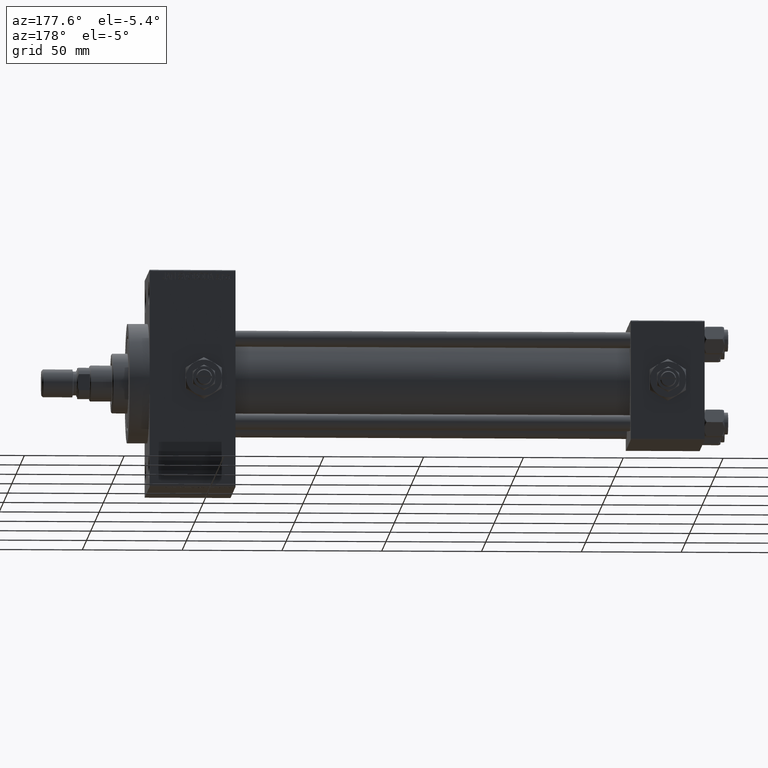
[diagram: clean part render]
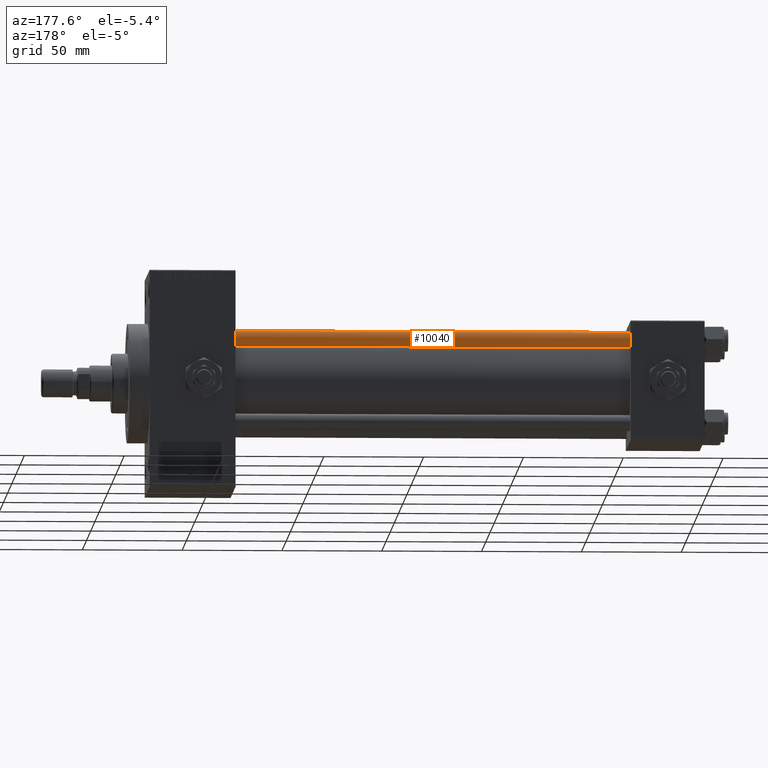
[diagram: same view with one face highlighted and labeled with its STEP entity id]
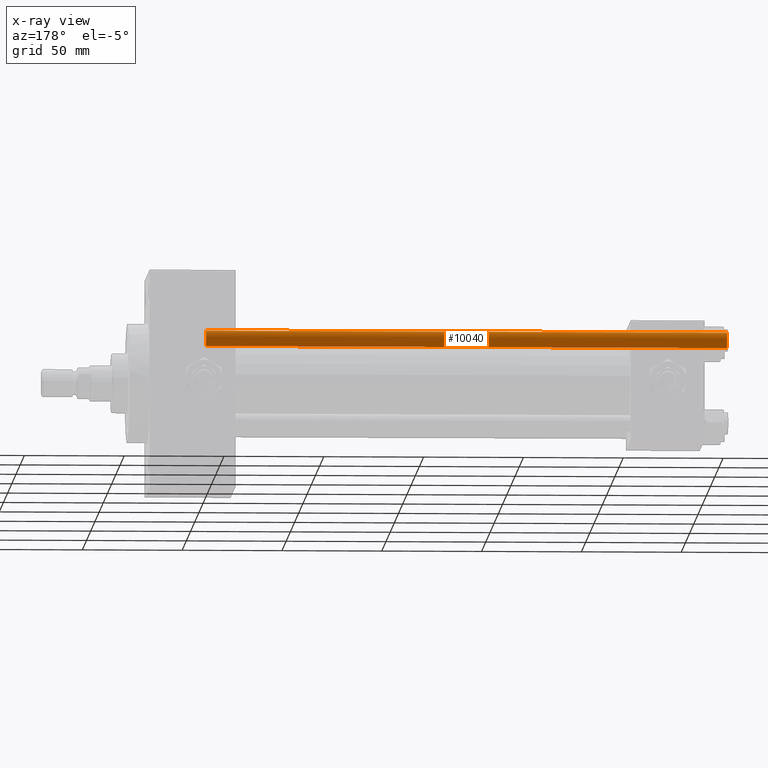
[diagram: x-ray of the same camera — body ghosted, the highlighted face saturated]
A machine part, auxiliary view. The second image highlights one B-rep face of the part: STEP entity #10040.
The next image is the same camera in x-ray: the body ghosted, the highlighted face saturated — about 0% of this face is hidden behind the body in this view.
In plain terms, the highlighted cylindrical surface (edge-blend (fillet) strip) has radius 4 mm, axis along (-1, -0, 0).
Its self-contained STEP definition (entity closure, byte-faithful):
#1569 = CYLINDRICAL_SURFACE ( 'NONE', #29147, 4.000000000000000000 ) ;
#6600 = ORIENTED_EDGE ( 'NONE', *, *, #23035, .T. ) ;
#8868 = DIRECTION ( 'NONE',  ( 1.000000000000000000, 0.000000000000000000, 0.000000000000000000 ) ) ;
#9395 = FACE_OUTER_BOUND ( 'NONE', #17322, .T. ) ;
#10040 = ADVANCED_FACE ( 'NONE', ( #9395 ), #1569, .T. ) ;
#12852 = ORIENTED_EDGE ( 'NONE', *, *, #41756, .T. ) ;
#13372 = CARTESIAN_POINT ( 'NONE',  ( 4.000000000000000000, 4.898587196589412829E-16, 0.5000000000000559552 ) ) ;
#13426 = DIRECTION ( 'NONE',  ( -1.000000000000000000, 0.000000000000000000, 0.000000000000000000 ) ) ;
#13715 = DIRECTION ( 'NONE',  ( -0.000000000000000000, -0.000000000000000000, -1.000000000000000000 ) ) ;
#13989 = VERTEX_POINT ( 'NONE', #29884 ) ;
#14475 = LINE ( 'NONE', #33178, #38975 ) ;
#16736 = DIRECTION ( 'NONE',  ( -0.000000000000000000, -0.000000000000000000, -1.000000000000000000 ) ) ;
#17322 = EDGE_LOOP ( 'NONE', ( #6600, #33902, #12852, #36376 ) ) ;
#17417 = VECTOR ( 'NONE', #16736, 1000.000000000000000 ) ;
#19015 = AXIS2_PLACEMENT_3D ( 'NONE', #42294, #34723, #30912 ) ;
#23035 = EDGE_CURVE ( 'NONE', #23280, #43382, #23050, .T. ) ;
#23050 = CIRCLE ( 'NONE', #19015, 4.000000000000000000 ) ;
#23080 = EDGE_CURVE ( 'NONE', #43382, #39127, #32408, .T. ) ;
#23280 = VERTEX_POINT ( 'NONE', #38443 ) ;
#23889 = CIRCLE ( 'NONE', #47330, 4.000000000000000000 ) ;
#24795 = DIRECTION ( 'NONE',  ( -0.000000000000000000, -0.000000000000000000, -1.000000000000000000 ) ) ;
#27816 = DIRECTION ( 'NONE',  ( -0.000000000000000000, -0.000000000000000000, 1.000000000000000000 ) ) ;
#28852 = CARTESIAN_POINT ( 'NONE',  ( 4.000000000000000000, 4.898587196589412829E-16, 262.0000000000000000 ) ) ;
#29147 = AXIS2_PLACEMENT_3D ( 'NONE', #32389, #24795, #13426 ) ;
#29808 = EDGE_CURVE ( 'NONE', #23280, #13989, #14475, .T. ) ;
#29884 = CARTESIAN_POINT ( 'NONE',  ( -4.000000000000000000, 0.000000000000000000, 0.5000000000000559552 ) ) ;
#30912 = DIRECTION ( 'NONE',  ( 1.000000000000000000, 0.000000000000000000, 0.000000000000000000 ) ) ;
#32389 = CARTESIAN_POINT ( 'NONE',  ( 0.000000000000000000, 0.000000000000000000, 262.0000000000000000 ) ) ;
#32408 = LINE ( 'NONE', #28852, #17417 ) ;
#33178 = CARTESIAN_POINT ( 'NONE',  ( -4.000000000000000000, 0.000000000000000000, 262.0000000000000000 ) ) ;
#33225 = CARTESIAN_POINT ( 'NONE',  ( 4.000000000000000000, 4.898587196589412829E-16, 261.5000000000000000 ) ) ;
#33902 = ORIENTED_EDGE ( 'NONE', *, *, #23080, .T. ) ;
#34723 = DIRECTION ( 'NONE',  ( 0.000000000000000000, 0.000000000000000000, -1.000000000000000000 ) ) ;
#36376 = ORIENTED_EDGE ( 'NONE', *, *, #29808, .F. ) ;
#38443 = CARTESIAN_POINT ( 'NONE',  ( -4.000000000000000000, 0.000000000000000000, 261.5000000000000000 ) ) ;
#38975 = VECTOR ( 'NONE', #13715, 1000.000000000000000 ) ;
#39127 = VERTEX_POINT ( 'NONE', #13372 ) ;
#41756 = EDGE_CURVE ( 'NONE', #39127, #13989, #23889, .T. ) ;
#42294 = CARTESIAN_POINT ( 'NONE',  ( 0.000000000000000000, 0.000000000000000000, 261.5000000000000000 ) ) ;
#43382 = VERTEX_POINT ( 'NONE', #33225 ) ;
#43722 = CARTESIAN_POINT ( 'NONE',  ( 0.000000000000000000, 0.000000000000000000, 0.5000000000000559552 ) ) ;
#47330 = AXIS2_PLACEMENT_3D ( 'NONE', #43722, #27816, #8868 ) ;